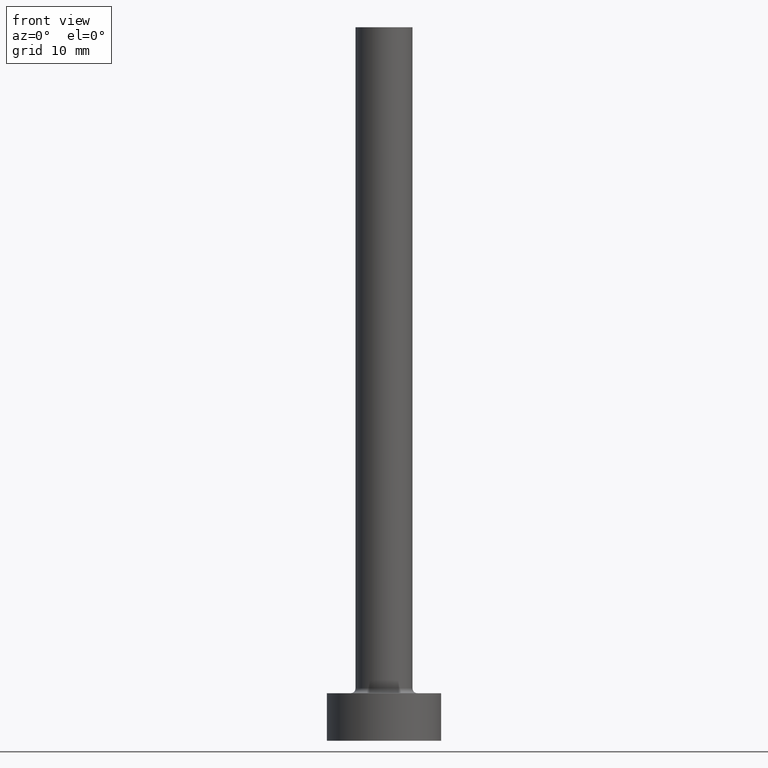
[diagram: clean part render]
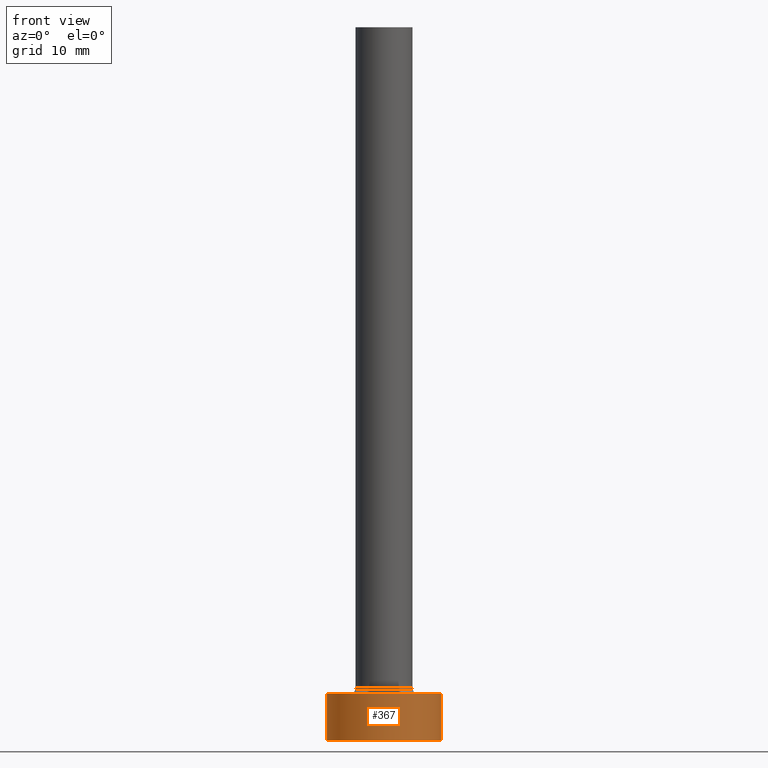
[diagram: same view with one face highlighted and labeled with its STEP entity id]
A machine part, front view. The second image highlights one B-rep face of the part: STEP entity #367.
In plain terms, the highlighted cylindrical surface (partial cylindrical patch) has radius 6 mm, axis along (-0, -0, -1).
Its self-contained STEP definition (entity closure, byte-faithful):
#10 = VECTOR ( 'NONE', #258, 1000.000000000000000 ) ;
#18 = VERTEX_POINT ( 'NONE', #305 ) ;
#37 = ORIENTED_EDGE ( 'NONE', *, *, #225, .T. ) ;
#52 = EDGE_LOOP ( 'NONE', ( #239, #140, #37, #98 ) ) ;
#58 = CARTESIAN_POINT ( 'NONE',  ( 0.000000000000000000, 0.000000000000000000, 5.000000000000000000 ) ) ;
#62 = FACE_OUTER_BOUND ( 'NONE', #52, .T. ) ;
#74 = AXIS2_PLACEMENT_3D ( 'NONE', #372, #177, #420 ) ;
#79 = CYLINDRICAL_SURFACE ( 'NONE', #74, 6.000000000000000888 ) ;
#83 = EDGE_CURVE ( 'NONE', #442, #18, #460, .T. ) ;
#87 = AXIS2_PLACEMENT_3D ( 'NONE', #246, #136, #417 ) ;
#90 = DIRECTION ( 'NONE',  ( 1.000000000000000000, 0.000000000000000000, 0.000000000000000000 ) ) ;
#98 = ORIENTED_EDGE ( 'NONE', *, *, #380, .T. ) ;
#136 = DIRECTION ( 'NONE',  ( 0.000000000000000000, 0.000000000000000000, 1.000000000000000000 ) ) ;
#140 = ORIENTED_EDGE ( 'NONE', *, *, #374, .F. ) ;
#143 = CIRCLE ( 'NONE', #87, 6.000000000000000888 ) ;
#177 = DIRECTION ( 'NONE',  ( -0.000000000000000000, -0.000000000000000000, -1.000000000000000000 ) ) ;
#225 = EDGE_CURVE ( 'NONE', #261, #229, #255, .T. ) ;
#229 = VERTEX_POINT ( 'NONE', #251 ) ;
#239 = ORIENTED_EDGE ( 'NONE', *, *, #83, .F. ) ;
#246 = CARTESIAN_POINT ( 'NONE',  ( 0.000000000000000000, 0.000000000000000000, 0.000000000000000000 ) ) ;
#251 = CARTESIAN_POINT ( 'NONE',  ( -6.000000000000000888, 0.000000000000000000, 0.000000000000000000 ) ) ;
#255 = LINE ( 'NONE', #428, #365 ) ;
#258 = DIRECTION ( 'NONE',  ( -0.000000000000000000, -0.000000000000000000, -1.000000000000000000 ) ) ;
#261 = VERTEX_POINT ( 'NONE', #450 ) ;
#263 = DIRECTION ( 'NONE',  ( -0.000000000000000000, -0.000000000000000000, -1.000000000000000000 ) ) ;
#288 = CIRCLE ( 'NONE', #341, 6.000000000000000888 ) ;
#305 = CARTESIAN_POINT ( 'NONE',  ( 6.000000000000000888, 7.347880794884120722E-16, 0.000000000000000000 ) ) ;
#341 = AXIS2_PLACEMENT_3D ( 'NONE', #58, #347, #90 ) ;
#347 = DIRECTION ( 'NONE',  ( 0.000000000000000000, 0.000000000000000000, 1.000000000000000000 ) ) ;
#365 = VECTOR ( 'NONE', #263, 1000.000000000000000 ) ;
#367 = ADVANCED_FACE ( 'NONE', ( #62 ), #79, .T. ) ;
#372 = CARTESIAN_POINT ( 'NONE',  ( 0.000000000000000000, 0.000000000000000000, 5.000000000000000000 ) ) ;
#374 = EDGE_CURVE ( 'NONE', #261, #442, #288, .T. ) ;
#380 = EDGE_CURVE ( 'NONE', #229, #18, #143, .T. ) ;
#393 = CARTESIAN_POINT ( 'NONE',  ( 6.000000000000000888, 7.347880794884120722E-16, 5.000000000000000000 ) ) ;
#417 = DIRECTION ( 'NONE',  ( 1.000000000000000000, 0.000000000000000000, 0.000000000000000000 ) ) ;
#420 = DIRECTION ( 'NONE',  ( -1.000000000000000000, 0.000000000000000000, 0.000000000000000000 ) ) ;
#428 = CARTESIAN_POINT ( 'NONE',  ( -6.000000000000000888, 0.000000000000000000, 5.000000000000000000 ) ) ;
#442 = VERTEX_POINT ( 'NONE', #452 ) ;
#450 = CARTESIAN_POINT ( 'NONE',  ( -6.000000000000000888, 0.000000000000000000, 5.000000000000000000 ) ) ;
#452 = CARTESIAN_POINT ( 'NONE',  ( 6.000000000000000888, 7.347880794884120722E-16, 5.000000000000000000 ) ) ;
#460 = LINE ( 'NONE', #393, #10 ) ;